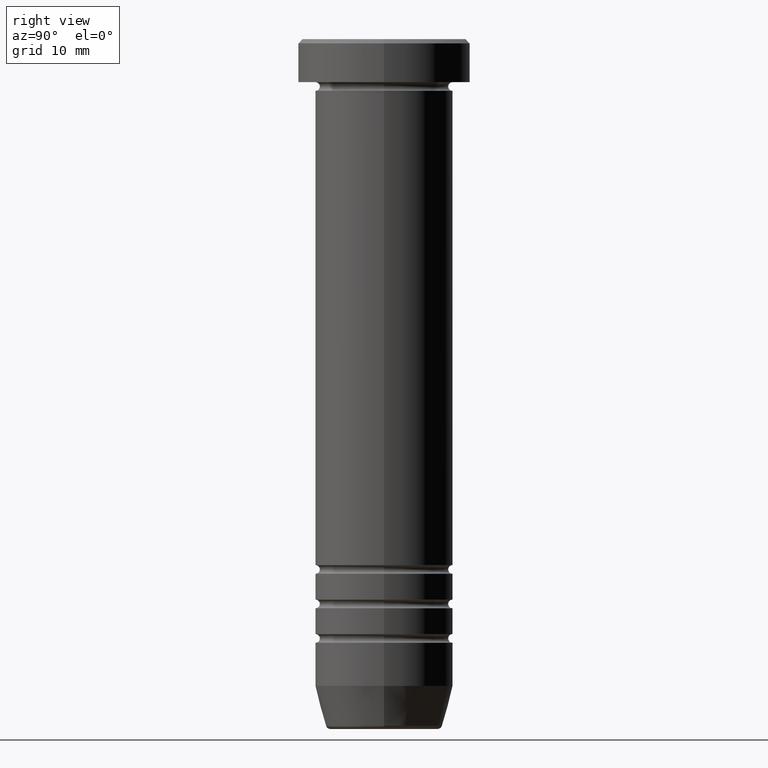
[diagram: clean part render]
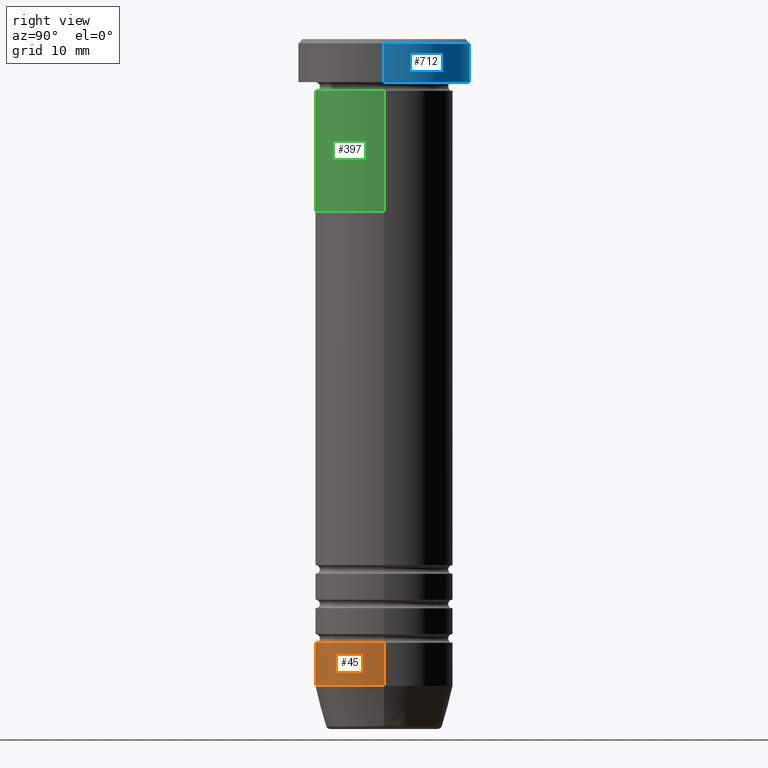
[diagram: same view with three faces highlighted in distinct colors, each labeled with its STEP entity id]
A machine part, right view with three faces highlighted in distinct colors.
Their STEP definitions:

[orange] entity #45 — the highlighted cylindrical surface (partial cylindrical patch) has radius 8 mm, axis along (-0, -0, 1).
#41 = DIRECTION ( 'NONE',  ( -0.000000000000000000, -0.000000000000000000, 1.000000000000000000 ) ) ;
#45 = ADVANCED_FACE ( 'NONE', ( #1022 ), #718, .T. ) ;
#54 = VECTOR ( 'NONE', #601, 1000.000000000000000 ) ;
#55 = CARTESIAN_POINT ( 'NONE',  ( 0.000000000000000000, 0.000000000000000000, -74.99999999999998579 ) ) ;
#85 = AXIS2_PLACEMENT_3D ( 'NONE', #469, #41, #378 ) ;
#103 = VERTEX_POINT ( 'NONE', #859 ) ;
#126 = VERTEX_POINT ( 'NONE', #872 ) ;
#163 = ORIENTED_EDGE ( 'NONE', *, *, #836, .F. ) ;
#205 = ORIENTED_EDGE ( 'NONE', *, *, #651, .T. ) ;
#237 = DIRECTION ( 'NONE',  ( -0.000000000000000000, -0.000000000000000000, 1.000000000000000000 ) ) ;
#272 = CARTESIAN_POINT ( 'NONE',  ( -8.000000000000000000, 9.797174393178825657E-16, 0.000000000000000000 ) ) ;
#349 = DIRECTION ( 'NONE',  ( -0.000000000000000000, -0.000000000000000000, 1.000000000000000000 ) ) ;
#378 = DIRECTION ( 'NONE',  ( 1.000000000000000000, 0.000000000000000000, 0.000000000000000000 ) ) ;
#394 = VERTEX_POINT ( 'NONE', #750 ) ;
#469 = CARTESIAN_POINT ( 'NONE',  ( 0.000000000000000000, 0.000000000000000000, 0.000000000000000000 ) ) ;
#474 = CARTESIAN_POINT ( 'NONE',  ( 8.000000000000000000, 0.000000000000000000, 0.000000000000000000 ) ) ;
#504 = AXIS2_PLACEMENT_3D ( 'NONE', #997, #349, #752 ) ;
#539 = CIRCLE ( 'NONE', #846, 8.000000000000000000 ) ;
#601 = DIRECTION ( 'NONE',  ( -0.000000000000000000, -0.000000000000000000, 1.000000000000000000 ) ) ;
#628 = EDGE_CURVE ( 'NONE', #126, #394, #539, .T. ) ;
#631 = DIRECTION ( 'NONE',  ( 1.000000000000000000, 0.000000000000000000, 0.000000000000000000 ) ) ;
#651 = EDGE_CURVE ( 'NONE', #394, #936, #873, .T. ) ;
#693 = EDGE_LOOP ( 'NONE', ( #1052, #786, #205, #163 ) ) ;
#718 = CYLINDRICAL_SURFACE ( 'NONE', #85, 8.000000000000000000 ) ;
#720 = DIRECTION ( 'NONE',  ( -0.000000000000000000, -0.000000000000000000, 1.000000000000000000 ) ) ;
#750 = CARTESIAN_POINT ( 'NONE',  ( 8.000000000000000000, 0.000000000000000000, -74.99999999999998579 ) ) ;
#752 = DIRECTION ( 'NONE',  ( 1.000000000000000000, 0.000000000000000000, 0.000000000000000000 ) ) ;
#780 = VECTOR ( 'NONE', #720, 1000.000000000000000 ) ;
#786 = ORIENTED_EDGE ( 'NONE', *, *, #628, .T. ) ;
#787 = CARTESIAN_POINT ( 'NONE',  ( 8.000000000000000000, 0.000000000000000000, -69.99999999999998579 ) ) ;
#836 = EDGE_CURVE ( 'NONE', #103, #936, #964, .T. ) ;
#846 = AXIS2_PLACEMENT_3D ( 'NONE', #55, #237, #631 ) ;
#859 = CARTESIAN_POINT ( 'NONE',  ( -8.000000000000000000, 9.797174393178825657E-16, -69.99999999999998579 ) ) ;
#872 = CARTESIAN_POINT ( 'NONE',  ( -8.000000000000000000, 9.797174393178825657E-16, -74.99999999999998579 ) ) ;
#873 = LINE ( 'NONE', #474, #780 ) ;
#936 = VERTEX_POINT ( 'NONE', #787 ) ;
#964 = CIRCLE ( 'NONE', #504, 8.000000000000000000 ) ;
#997 = CARTESIAN_POINT ( 'NONE',  ( 0.000000000000000000, 0.000000000000000000, -69.99999999999998579 ) ) ;
#1010 = LINE ( 'NONE', #272, #54 ) ;
#1022 = FACE_OUTER_BOUND ( 'NONE', #693, .T. ) ;
#1033 = EDGE_CURVE ( 'NONE', #126, #103, #1010, .T. ) ;
#1052 = ORIENTED_EDGE ( 'NONE', *, *, #1033, .F. ) ;

[blue] entity #712 — the highlighted cylindrical surface (partial cylindrical patch) has radius 10 mm, axis along (-0, -0, 1).
#8 = CARTESIAN_POINT ( 'NONE',  ( 0.000000000000000000, 0.000000000000000000, -0.5000000000000091038 ) ) ;
#34 = VERTEX_POINT ( 'NONE', #546 ) ;
#42 = ORIENTED_EDGE ( 'NONE', *, *, #405, .T. ) ;
#81 = LINE ( 'NONE', #591, #327 ) ;
#117 = EDGE_LOOP ( 'NONE', ( #921, #543, #42, #968 ) ) ;
#137 = CIRCLE ( 'NONE', #677, 10.00000000000000000 ) ;
#226 = DIRECTION ( 'NONE',  ( 1.000000000000000000, 0.000000000000000000, 0.000000000000000000 ) ) ;
#241 = CIRCLE ( 'NONE', #485, 10.00000000000000000 ) ;
#289 = EDGE_CURVE ( 'NONE', #688, #354, #137, .T. ) ;
#300 = EDGE_CURVE ( 'NONE', #354, #34, #81, .T. ) ;
#312 = DIRECTION ( 'NONE',  ( -0.000000000000000000, -0.000000000000000000, 1.000000000000000000 ) ) ;
#327 = VECTOR ( 'NONE', #335, 1000.000000000000000 ) ;
#335 = DIRECTION ( 'NONE',  ( -0.000000000000000000, -0.000000000000000000, 1.000000000000000000 ) ) ;
#340 = LINE ( 'NONE', #672, #810 ) ;
#354 = VERTEX_POINT ( 'NONE', #913 ) ;
#405 = EDGE_CURVE ( 'NONE', #34, #808, #241, .T. ) ;
#431 = EDGE_CURVE ( 'NONE', #688, #808, #340, .T. ) ;
#466 = CYLINDRICAL_SURFACE ( 'NONE', #1034, 10.00000000000000000 ) ;
#485 = AXIS2_PLACEMENT_3D ( 'NONE', #8, #585, #746 ) ;
#490 = CARTESIAN_POINT ( 'NONE',  ( 10.00000000000000000, 0.000000000000000000, -5.000000000000000000 ) ) ;
#543 = ORIENTED_EDGE ( 'NONE', *, *, #300, .T. ) ;
#546 = CARTESIAN_POINT ( 'NONE',  ( -10.00000000000000000, 1.224646799147353256E-15, -0.5000000000000091038 ) ) ;
#585 = DIRECTION ( 'NONE',  ( 0.000000000000000000, 0.000000000000000000, -1.000000000000000000 ) ) ;
#591 = CARTESIAN_POINT ( 'NONE',  ( -10.00000000000000000, 1.224646799147353256E-15, 0.000000000000000000 ) ) ;
#672 = CARTESIAN_POINT ( 'NONE',  ( 10.00000000000000000, 0.000000000000000000, 0.000000000000000000 ) ) ;
#677 = AXIS2_PLACEMENT_3D ( 'NONE', #731, #312, #975 ) ;
#688 = VERTEX_POINT ( 'NONE', #490 ) ;
#712 = ADVANCED_FACE ( 'NONE', ( #1053 ), #466, .T. ) ;
#731 = CARTESIAN_POINT ( 'NONE',  ( 0.000000000000000000, 0.000000000000000000, -5.000000000000000000 ) ) ;
#746 = DIRECTION ( 'NONE',  ( 1.000000000000000000, 0.000000000000000000, 0.000000000000000000 ) ) ;
#798 = DIRECTION ( 'NONE',  ( -0.000000000000000000, -0.000000000000000000, 1.000000000000000000 ) ) ;
#806 = CARTESIAN_POINT ( 'NONE',  ( 0.000000000000000000, 0.000000000000000000, 0.000000000000000000 ) ) ;
#808 = VERTEX_POINT ( 'NONE', #924 ) ;
#810 = VECTOR ( 'NONE', #999, 1000.000000000000000 ) ;
#913 = CARTESIAN_POINT ( 'NONE',  ( -10.00000000000000000, 1.224646799147353256E-15, -5.000000000000000000 ) ) ;
#921 = ORIENTED_EDGE ( 'NONE', *, *, #289, .T. ) ;
#924 = CARTESIAN_POINT ( 'NONE',  ( 10.00000000000000000, 0.000000000000000000, -0.5000000000000091038 ) ) ;
#968 = ORIENTED_EDGE ( 'NONE', *, *, #431, .F. ) ;
#975 = DIRECTION ( 'NONE',  ( 1.000000000000000000, 0.000000000000000000, 0.000000000000000000 ) ) ;
#999 = DIRECTION ( 'NONE',  ( -0.000000000000000000, -0.000000000000000000, 1.000000000000000000 ) ) ;
#1034 = AXIS2_PLACEMENT_3D ( 'NONE', #806, #798, #226 ) ;
#1053 = FACE_OUTER_BOUND ( 'NONE', #117, .T. ) ;

[green] entity #397 — the highlighted cylindrical surface (partial cylindrical patch) has radius 8 mm, axis along (-0, -0, 1).
#2 = DIRECTION ( 'NONE',  ( -0.000000000000000000, -0.000000000000000000, 1.000000000000000000 ) ) ;
#48 = DIRECTION ( 'NONE',  ( -0.000000000000000000, -0.000000000000000000, 1.000000000000000000 ) ) ;
#52 = EDGE_CURVE ( 'NONE', #761, #438, #290, .T. ) ;
#75 = VERTEX_POINT ( 'NONE', #201 ) ;
#131 = DIRECTION ( 'NONE',  ( 1.000000000000000000, 0.000000000000000000, 0.000000000000000000 ) ) ;
#132 = CARTESIAN_POINT ( 'NONE',  ( 8.000000000000000000, 0.000000000000000000, 0.000000000000000000 ) ) ;
#156 = ORIENTED_EDGE ( 'NONE', *, *, #874, .T. ) ;
#174 = DIRECTION ( 'NONE',  ( 1.000000000000000000, 0.000000000000000000, 0.000000000000000000 ) ) ;
#184 = DIRECTION ( 'NONE',  ( -0.000000000000000000, -0.000000000000000000, 1.000000000000000000 ) ) ;
#188 = AXIS2_PLACEMENT_3D ( 'NONE', #755, #254, #174 ) ;
#194 = AXIS2_PLACEMENT_3D ( 'NONE', #667, #2, #986 ) ;
#201 = CARTESIAN_POINT ( 'NONE',  ( -8.000000000000000000, 9.797174393178825657E-16, -20.00000000000000000 ) ) ;
#254 = DIRECTION ( 'NONE',  ( -0.000000000000000000, -0.000000000000000000, 1.000000000000000000 ) ) ;
#282 = CARTESIAN_POINT ( 'NONE',  ( 0.000000000000000000, 0.000000000000000000, -6.000000000000000000 ) ) ;
#290 = CIRCLE ( 'NONE', #962, 8.000000000000000000 ) ;
#343 = VECTOR ( 'NONE', #184, 1000.000000000000000 ) ;
#347 = ORIENTED_EDGE ( 'NONE', *, *, #530, .T. ) ;
#367 = ORIENTED_EDGE ( 'NONE', *, *, #464, .F. ) ;
#382 = VECTOR ( 'NONE', #48, 1000.000000000000000 ) ;
#397 = ADVANCED_FACE ( 'NONE', ( #822 ), #414, .T. ) ;
#410 = EDGE_LOOP ( 'NONE', ( #367, #156, #347, #480 ) ) ;
#414 = CYLINDRICAL_SURFACE ( 'NONE', #188, 8.000000000000000000 ) ;
#430 = CARTESIAN_POINT ( 'NONE',  ( 8.000000000000000000, 0.000000000000000000, -20.00000000000000000 ) ) ;
#438 = VERTEX_POINT ( 'NONE', #920 ) ;
#441 = VERTEX_POINT ( 'NONE', #430 ) ;
#464 = EDGE_CURVE ( 'NONE', #75, #761, #596, .T. ) ;
#480 = ORIENTED_EDGE ( 'NONE', *, *, #52, .F. ) ;
#521 = CIRCLE ( 'NONE', #194, 8.000000000000000000 ) ;
#530 = EDGE_CURVE ( 'NONE', #441, #438, #717, .T. ) ;
#596 = LINE ( 'NONE', #925, #343 ) ;
#667 = CARTESIAN_POINT ( 'NONE',  ( 0.000000000000000000, 0.000000000000000000, -20.00000000000000000 ) ) ;
#680 = CARTESIAN_POINT ( 'NONE',  ( -8.000000000000000000, 9.797174393178825657E-16, -6.000000000000000000 ) ) ;
#717 = LINE ( 'NONE', #132, #382 ) ;
#755 = CARTESIAN_POINT ( 'NONE',  ( 0.000000000000000000, 0.000000000000000000, 0.000000000000000000 ) ) ;
#761 = VERTEX_POINT ( 'NONE', #680 ) ;
#822 = FACE_OUTER_BOUND ( 'NONE', #410, .T. ) ;
#874 = EDGE_CURVE ( 'NONE', #75, #441, #521, .T. ) ;
#920 = CARTESIAN_POINT ( 'NONE',  ( 8.000000000000000000, 0.000000000000000000, -6.000000000000000000 ) ) ;
#925 = CARTESIAN_POINT ( 'NONE',  ( -8.000000000000000000, 9.797174393178825657E-16, 0.000000000000000000 ) ) ;
#943 = DIRECTION ( 'NONE',  ( -0.000000000000000000, -0.000000000000000000, 1.000000000000000000 ) ) ;
#962 = AXIS2_PLACEMENT_3D ( 'NONE', #282, #943, #131 ) ;
#986 = DIRECTION ( 'NONE',  ( 1.000000000000000000, 0.000000000000000000, 0.000000000000000000 ) ) ;